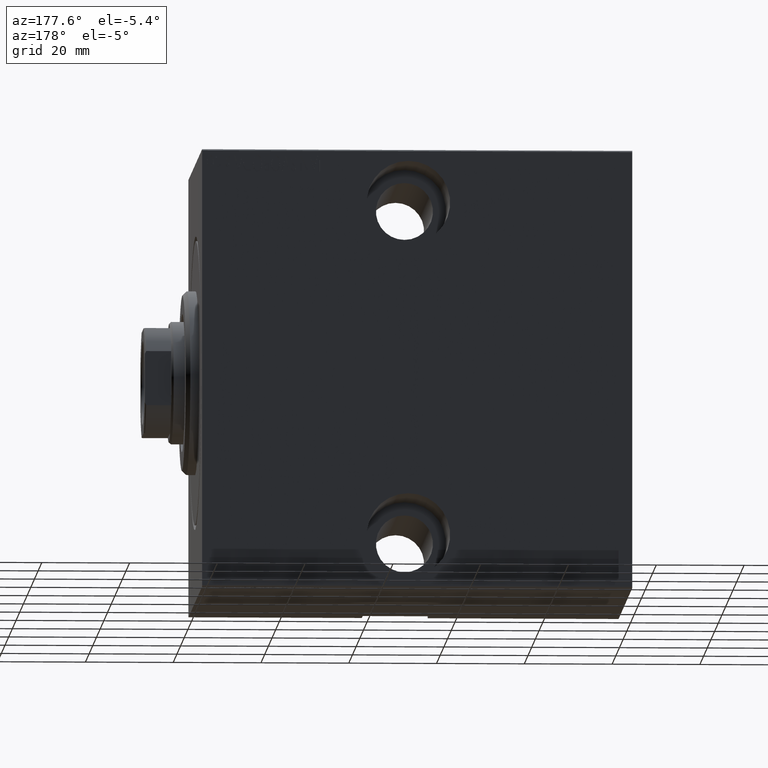
[diagram: clean part render]
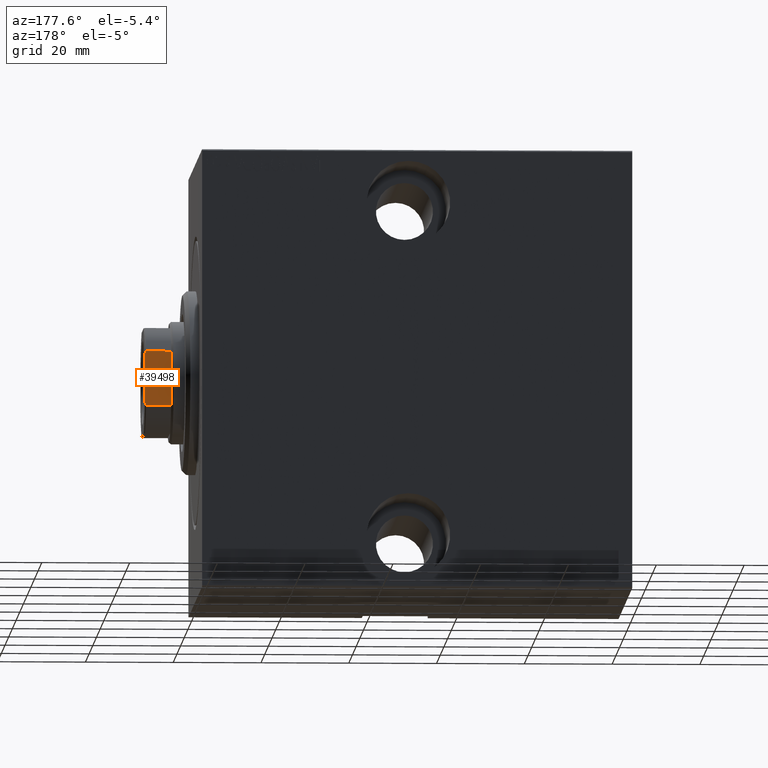
[diagram: same view with one face highlighted and labeled with its STEP entity id]
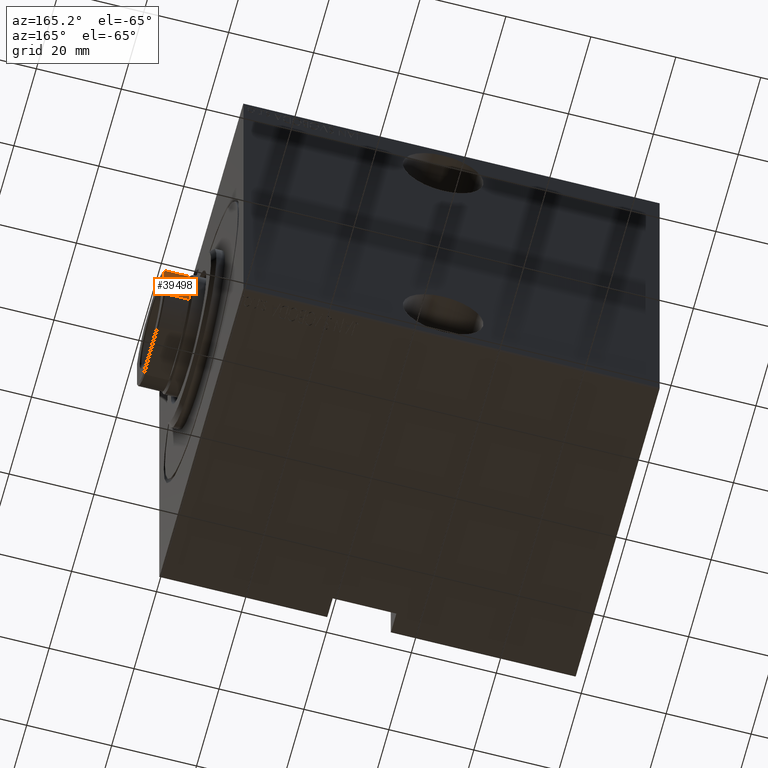
[diagram: same view with one face highlighted and labeled with its STEP entity id]
A machine part, auxiliary view. The second image highlights one B-rep face of the part: STEP entity #39498.
A second angle (auxiliary view) of the same face is appended — the face is thin or edge-on in the first view.
In plain terms, the highlighted planar face has unit normal (0, -1, -0).
Its self-contained STEP definition (entity closure, byte-faithful):
#74 = EDGE_CURVE ( 'NONE', #36268, #37940, #1407, .T. ) ;
#368 = DIRECTION ( 'NONE',  ( 0.000000000000000000, -1.000000000000000000, 0.000000000000000000 ) ) ;
#1114 = CARTESIAN_POINT ( 'NONE',  ( -5.499090833947067658, 11.99999999999999645, 96.00000000000000000 ) ) ;
#1407 = LINE ( 'NONE', #14649, #37393 ) ;
#1576 = VERTEX_POINT ( 'NONE', #26894 ) ;
#2265 = ORIENTED_EDGE ( 'NONE', *, *, #31179, .T. ) ;
#2861 = ORIENTED_EDGE ( 'NONE', *, *, #39997, .T. ) ;
#3234 = CARTESIAN_POINT ( 'NONE',  ( 5.499090833947041901, 11.99999999999999645, 96.00000000000000000 ) ) ;
#3410 = DIRECTION ( 'NONE',  ( 0.000000000000000000, -0.000000000000000000, -1.000000000000000000 ) ) ;
#4536 = VERTEX_POINT ( 'NONE', #35844 ) ;
#4728 = CARTESIAN_POINT ( 'NONE',  ( -12.00000000000000355, 11.99999999999999645, 96.00000000000000000 ) ) ;
#5578 = ORIENTED_EDGE ( 'NONE', *, *, #74, .T. ) ;
#5979 = EDGE_CURVE ( 'NONE', #1576, #6730, #24728, .T. ) ;
#6536 = EDGE_LOOP ( 'NONE', ( #19151, #2265, #31456, #41324, #5578, #2861 ) ) ;
#6730 = VERTEX_POINT ( 'NONE', #1114 ) ;
#7028 = B_SPLINE_CURVE_WITH_KNOTS ( 'NONE', 3,
 ( #12864, #15705, #9180, #28955 ),
 .UNSPECIFIED., .F., .F.,
 ( 4, 4 ),
 ( 0.000000000000000000, 0.0007483334419305723295 ),
 .UNSPECIFIED. ) ;
#7535 = CARTESIAN_POINT ( 'NONE',  ( -12.00000000000000355, 11.99999999999999645, 96.00000000000000000 ) ) ;
#8812 = CARTESIAN_POINT ( 'NONE',  ( 6.184658438426500204, 11.99999999999999822, -0.001000000000001000089 ) ) ;
#8967 = VECTOR ( 'NONE', #34488, 1000.000000000000000 ) ;
#9180 = CARTESIAN_POINT ( 'NONE',  ( -5.729389212963482692, 11.99999999999999645, 95.90405820415742255 ) ) ;
#10282 = CARTESIAN_POINT ( 'NONE',  ( -6.184658438426501093, 11.99999999999999645, 95.70000000000001705 ) ) ;
#12864 = CARTESIAN_POINT ( 'NONE',  ( -6.184658438426501093, 11.99999999999999645, 95.70000000000001705 ) ) ;
#14649 = CARTESIAN_POINT ( 'NONE',  ( -6.184658438426501093, 11.99999999999999645, -0.001000000000001000089 ) ) ;
#14711 = CARTESIAN_POINT ( 'NONE',  ( -12.00000000000000355, 11.99999999999999645, 90.00000000000000000 ) ) ;
#15135 = EDGE_CURVE ( 'NONE', #4536, #37658, #38984, .T. ) ;
#15705 = CARTESIAN_POINT ( 'NONE',  ( -5.957846001622736587, 11.99999999999999645, 95.80390795934954440 ) ) ;
#16355 = VECTOR ( 'NONE', #38355, 1000.000000000000000 ) ;
#16484 = CARTESIAN_POINT ( 'NONE',  ( 5.729389212963464928, 11.99999999999999645, 95.90405820415740834 ) ) ;
#18184 = LINE ( 'NONE', #14711, #16355 ) ;
#19151 = ORIENTED_EDGE ( 'NONE', *, *, #5979, .F. ) ;
#19963 = CARTESIAN_POINT ( 'NONE',  ( 5.957846001622730370, 11.99999999999999645, 95.80390795934953019 ) ) ;
#20144 = FACE_OUTER_BOUND ( 'NONE', #6536, .T. ) ;
#21789 = VECTOR ( 'NONE', #38348, 1000.000000000000000 ) ;
#21958 = AXIS2_PLACEMENT_3D ( 'NONE', #7535, #368, #3410 ) ;
#23615 = PLANE ( 'NONE',  #21958 ) ;
#24488 = EDGE_CURVE ( 'NONE', #4536, #36268, #18184, .T. ) ;
#24728 = LINE ( 'NONE', #4728, #8967 ) ;
#26470 = B_SPLINE_CURVE_WITH_KNOTS ( 'NONE', 3,
 ( #3234, #16484, #19963, #29522 ),
 .UNSPECIFIED., .F., .F.,
 ( 4, 4 ),
 ( 8.673617379884035472E-19, 0.0007483334419306079998 ),
 .UNSPECIFIED. ) ;
#26894 = CARTESIAN_POINT ( 'NONE',  ( 5.499090833947041901, 11.99999999999999645, 96.00000000000000000 ) ) ;
#28955 = CARTESIAN_POINT ( 'NONE',  ( -5.499090833947067658, 11.99999999999999645, 96.00000000000000000 ) ) ;
#29522 = CARTESIAN_POINT ( 'NONE',  ( 6.184658438426500204, 11.99999999999999822, 95.69999999999998863 ) ) ;
#30399 = CARTESIAN_POINT ( 'NONE',  ( -6.184658438426499316, 11.99999999999999645, 89.99999999999998579 ) ) ;
#31179 = EDGE_CURVE ( 'NONE', #1576, #37658, #26470, .T. ) ;
#31456 = ORIENTED_EDGE ( 'NONE', *, *, #15135, .F. ) ;
#34488 = DIRECTION ( 'NONE',  ( -1.000000000000000000, -0.000000000000000000, -0.000000000000000000 ) ) ;
#35844 = CARTESIAN_POINT ( 'NONE',  ( 6.184658438426499316, 11.99999999999999645, 89.99999999999998579 ) ) ;
#36268 = VERTEX_POINT ( 'NONE', #30399 ) ;
#36616 = CARTESIAN_POINT ( 'NONE',  ( 6.184658438426500204, 11.99999999999999822, 95.69999999999998863 ) ) ;
#37393 = VECTOR ( 'NONE', #38298, 1000.000000000000000 ) ;
#37658 = VERTEX_POINT ( 'NONE', #36616 ) ;
#37940 = VERTEX_POINT ( 'NONE', #10282 ) ;
#38298 = DIRECTION ( 'NONE',  ( -0.000000000000000000, -0.000000000000000000, 1.000000000000000000 ) ) ;
#38348 = DIRECTION ( 'NONE',  ( -0.000000000000000000, -0.000000000000000000, 1.000000000000000000 ) ) ;
#38355 = DIRECTION ( 'NONE',  ( -1.000000000000000000, -0.000000000000000000, -0.000000000000000000 ) ) ;
#38984 = LINE ( 'NONE', #8812, #21789 ) ;
#39498 = ADVANCED_FACE ( 'NONE', ( #20144 ), #23615, .F. ) ;
#39997 = EDGE_CURVE ( 'NONE', #37940, #6730, #7028, .T. ) ;
#41324 = ORIENTED_EDGE ( 'NONE', *, *, #24488, .T. ) ;